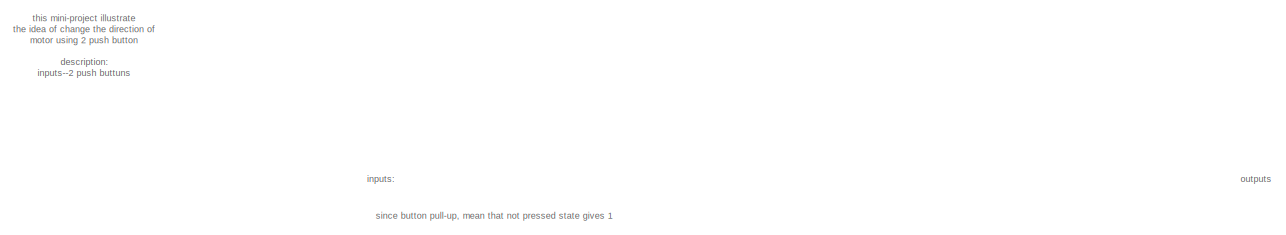
[diagram: root canvas - part 1/3, top center region]
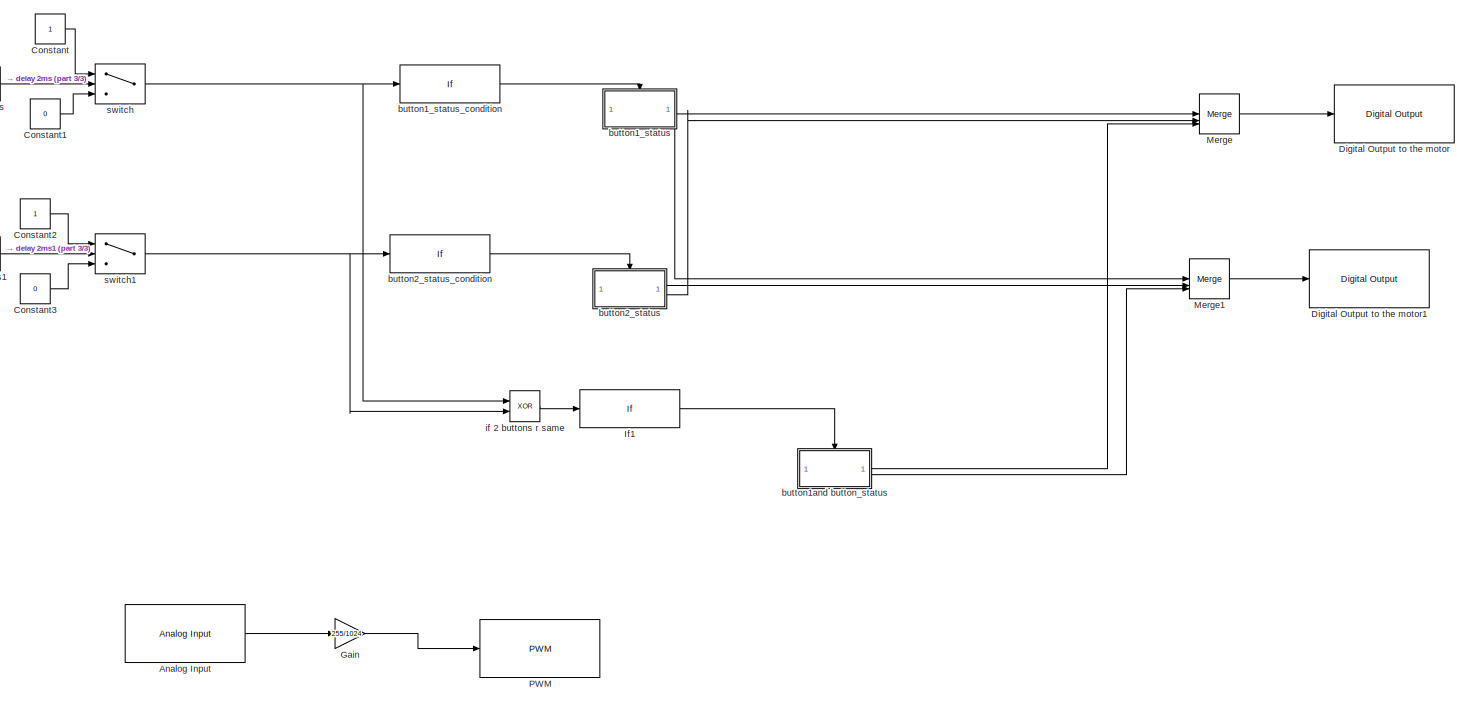
[diagram: root canvas - part 2/3, full width, middle band]
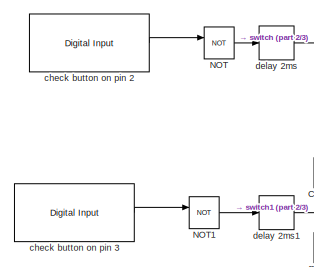
[diagram: root canvas - part 3/3, middle left region]
MODEL slx_a116d14a30b5
KIND model
CONFIG AbsTol = auto
CONFIG EnableMultiTasking = on
CONFIG FixedStep = 1e-3
CONFIG MaxStep = auto
CONFIG MinStep = auto
CONFIG RelTol = 1e-3
CONFIG SampleTimeConstraint = Unconstrained
CONFIG SolverName = FixedStepDiscrete
CONFIG StartTime = 0.0
CONFIG StopTime = inf
BLOCK [Reference] Analog Input  REF=arduinolib/Analog Input
  SourceBlock = arduinolib/Analog Input
  SourceType = Arduino Analog Input
BLOCK [Constant] Constant
BLOCK [Constant] Constant1
  Value = 0
BLOCK [Constant] Constant2
BLOCK [Constant] Constant3
  Value = 0
BLOCK [Reference] Digital Output to the motor  REF=arduinolib/Digital Output
  SourceBlock = arduinolib/Digital Output
  SourceType = Arduino Digital Output
BLOCK [Reference] Digital Output to the motor1  REF=arduinolib/Digital Output
  SourceBlock = arduinolib/Digital Output
  SourceType = Arduino Digital Output
BLOCK [Gain] Gain
  Gain = 255/1024
BLOCK [If] If1
  IfExpression = u1 == 0
  ShowElse = off
BLOCK [Merge] Merge
  Inputs = 3
BLOCK [Merge] Merge1
  Inputs = 3
BLOCK [Logic] NOT
  AllPortsSameDT = off
  IconShape = distinctive
  Operator = NOT
  OutDataTypeStr = boolean
BLOCK [Logic] NOT1
  AllPortsSameDT = off
  IconShape = distinctive
  Operator = NOT
  OutDataTypeStr = boolean
BLOCK [Reference] PWM  REF=arduinolib/PWM
  SourceBlock = arduinolib/PWM
  SourceType = Arduino PWM
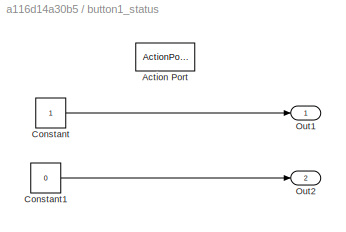
BLOCK [SubSystem] button1_status
  TreatAsAtomicUnit = on
BLOCK [ActionPort] button1_status/Action Port
  ActionPortLabel = if(u1 ==1)
BLOCK [Constant] button1_status/Constant
  OutDataTypeStr = boolean
BLOCK [Constant] button1_status/Constant1
  OutDataTypeStr = boolean
  Value = 0
BLOCK [Outport] button1_status/Out1
BLOCK [Outport] button1_status/Out2
  Port = 2
BLOCK [If] button1_status_condition
  IfExpression = u1 ==1
  ShowElse = off
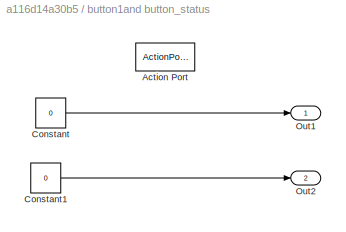
BLOCK [SubSystem] button1and button_status
  TreatAsAtomicUnit = on
BLOCK [ActionPort] button1and button_status/Action Port
  ActionPortLabel = if(u1 == 0)
BLOCK [Constant] button1and button_status/Constant
  OutDataTypeStr = boolean
  Value = 0
BLOCK [Constant] button1and button_status/Constant1
  OutDataTypeStr = boolean
  Value = 0
BLOCK [Outport] button1and button_status/Out1
BLOCK [Outport] button1and button_status/Out2
  Port = 2
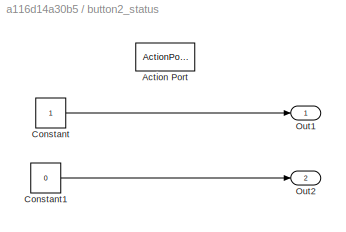
BLOCK [SubSystem] button2_status
  TreatAsAtomicUnit = on
BLOCK [ActionPort] button2_status/Action Port
  ActionPortLabel = if(u1 ==1)
BLOCK [Constant] button2_status/Constant
  OutDataTypeStr = boolean
BLOCK [Constant] button2_status/Constant1
  OutDataTypeStr = boolean
  Value = 0
BLOCK [Outport] button2_status/Out1
BLOCK [Outport] button2_status/Out2
  Port = 2
BLOCK [If] button2_status_condition
  IfExpression = u1 ==1
  ShowElse = off
BLOCK [Reference] check button on pin 2  REF=arduinolib/Digital Input
  SourceBlock = arduinolib/Digital Input
  SourceType = Arduino Digital Input
BLOCK [Reference] check button on pin 3  REF=arduinolib/Digital Input
  SourceBlock = arduinolib/Digital Input
  SourceType = Arduino Digital Input
BLOCK [Delay] delay 2ms
  InputPortMap = u0
BLOCK [Delay] delay 2ms1
  InputPortMap = u0
BLOCK [Logic] if 2 buttons r same
  AllPortsSameDT = off
  Operator = XOR
  OutDataTypeStr = boolean
BLOCK [Switch] switch
  Criteria = u2 > Threshold
  InputSameDT = off
  SaturateOnIntegerOverflow = off
  Threshold = 2
BLOCK [Switch] switch1
  Criteria = u2 > Threshold
  InputSameDT = off
  SaturateOnIntegerOverflow = off
  Threshold = 2
ANNOTATION (root): inputs:
ANNOTATION (root): outputs
ANNOTATION (root): since button pull-up, mean that not pressed state gives 1
ANNOTATION (root): this mini-project illustrate the idea of change the direction of motor using 2 push button description: inputs--2 push buttuns output--motor each push buton control direction potentiometer control the speed
LINE Analog Input:1 -> Gain:1
LINE Constant1:1 -> switch:3
LINE Constant2:1 -> switch1:1
LINE Constant3:1 -> switch1:3
LINE Constant:1 -> switch:1
LINE Gain:1 -> PWM:1
LINE If1:1 -> button1and button_status:ifaction
LINE Merge1:1 -> Digital Output to the motor1:1
LINE Merge:1 -> Digital Output to the motor:1
LINE NOT1:1 -> delay 2ms1:1
LINE NOT:1 -> delay 2ms:1
LINE button1_status/Constant1:1 -> button1_status/Out2:1
LINE button1_status/Constant:1 -> button1_status/Out1:1
LINE button1_status:1 -> Merge:1
LINE button1_status:2 -> Merge1:1
LINE button1_status_condition:1 -> button1_status:ifaction
LINE button1and button_status/Constant1:1 -> button1and button_status/Out2:1
LINE button1and button_status/Constant:1 -> button1and button_status/Out1:1
LINE button1and button_status:1 -> Merge:3
LINE button1and button_status:2 -> Merge1:3
LINE button2_status/Constant1:1 -> button2_status/Out2:1
LINE button2_status/Constant:1 -> button2_status/Out1:1
LINE button2_status:1 -> Merge1:2
LINE button2_status:2 -> Merge:2
LINE button2_status_condition:1 -> button2_status:ifaction
LINE check button on pin 2:1 -> NOT:1
LINE check button on pin 3:1 -> NOT1:1
LINE delay 2ms1:1 -> switch1:2
LINE delay 2ms:1 -> switch:2
LINE if 2 buttons r same:1 -> If1:1
NET switch1:1 -> button2_status_condition:1, if 2 buttons r same:2
NET switch:1 -> button1_status_condition:1, if 2 buttons r same:1
note: NET lines group one-source signal fan-out (src -> all destinations, sorted); 1:1 wires keep LINE
